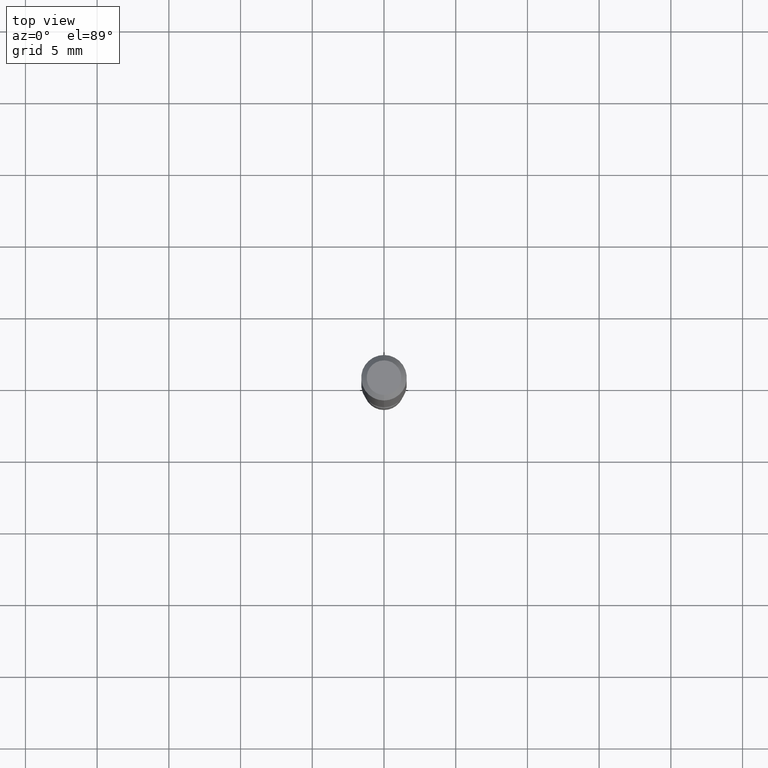
[diagram: clean part render]
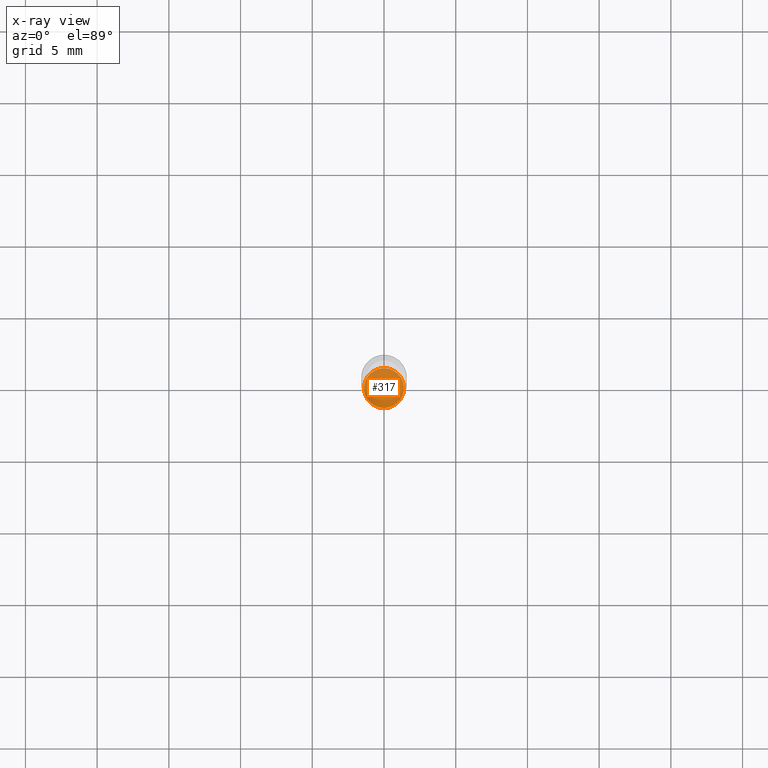
[diagram: x-ray — body ghosted, one internal face saturated and labeled with its STEP entity id]
A machine part, top view, then the same camera in x-ray: the body is ghosted and one INTERNAL B-rep face — a face not visible from any outside direction — is saturated and labeled: STEP entity #317.
In plain terms, the highlighted planar face has unit normal (-0, 0, 1).
Its self-contained STEP definition (entity closure, byte-faithful):
#2 = EDGE_CURVE ( 'NONE', #113, #246, #393, .T. ) ;
#53 = DIRECTION ( 'NONE',  ( -2.445407676083819856E-29, 3.491568880627540289E-15, 1.000000000000000000 ) ) ;
#75 = PLANE ( 'NONE',  #383 ) ;
#77 = AXIS2_PLACEMENT_3D ( 'NONE', #400, #347, #183 ) ;
#113 = VERTEX_POINT ( 'NONE', #277 ) ;
#159 = ORIENTED_EDGE ( 'NONE', *, *, #2, .F. ) ;
#183 = DIRECTION ( 'NONE',  ( -6.982962677686266711E-15, -1.000000000000000000, 4.966996352116842287E-15 ) ) ;
#209 = DIRECTION ( 'NONE',  ( -2.445407676083819295E-29, 3.491568880627540684E-15, 1.000000000000000000 ) ) ;
#244 = CIRCLE ( 'NONE', #300, 0.05500000000000000028 ) ;
#246 = VERTEX_POINT ( 'NONE', #503 ) ;
#277 = CARTESIAN_POINT ( 'NONE',  ( -3.840629472727041611E-16, -0.05500000000000587752, -1.669999999999999707 ) ) ;
#300 = AXIS2_PLACEMENT_3D ( 'NONE', #397, #53, #440 ) ;
#311 = ORIENTED_EDGE ( 'NONE', *, *, #439, .F. ) ;
#317 = ADVANCED_FACE ( 'NONE', ( #382 ), #75, .F. ) ;
#347 = DIRECTION ( 'NONE',  ( -2.445407676083819856E-29, 3.491568880627540289E-15, 1.000000000000000000 ) ) ;
#378 = DIRECTION ( 'NONE',  ( -6.982962677686265922E-15, -1.000000000000000000, 3.491568880627540684E-15 ) ) ;
#382 = FACE_OUTER_BOUND ( 'NONE', #442, .T. ) ;
#383 = AXIS2_PLACEMENT_3D ( 'NONE', #566, #209, #378 ) ;
#393 = CIRCLE ( 'NONE', #77, 0.05500000000000000028 ) ;
#397 = CARTESIAN_POINT ( 'NONE',  ( 4.083830819059979171E-29, -5.830920030647992129E-15, -1.669999999999999929 ) ) ;
#400 = CARTESIAN_POINT ( 'NONE',  ( 4.083830819059979171E-29, -5.830920030647992129E-15, -1.669999999999999929 ) ) ;
#439 = EDGE_CURVE ( 'NONE', #246, #113, #244, .T. ) ;
#440 = DIRECTION ( 'NONE',  ( -6.982962677686266711E-15, -1.000000000000000000, 4.966996352116842287E-15 ) ) ;
#442 = EDGE_LOOP ( 'NONE', ( #159, #311 ) ) ;
#503 = CARTESIAN_POINT ( 'NONE',  ( 3.907985046680961743E-16, 0.05499999999999421324, -1.670000000000000151 ) ) ;
#566 = CARTESIAN_POINT ( 'NONE',  ( 3.840629472727855124E-16, 0.05499999999999417161, -1.670000000000000151 ) ) ;